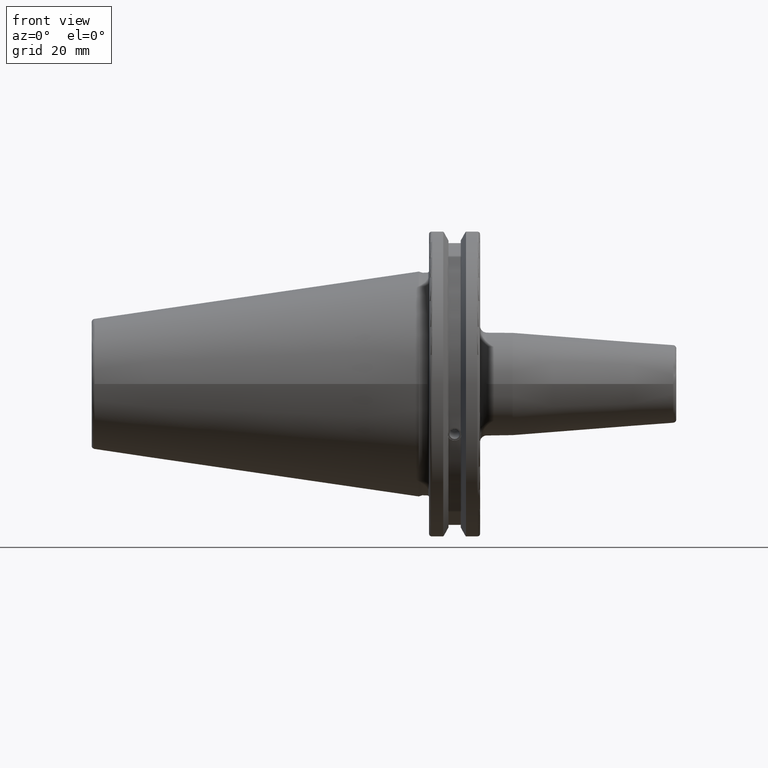
[diagram: clean part render]
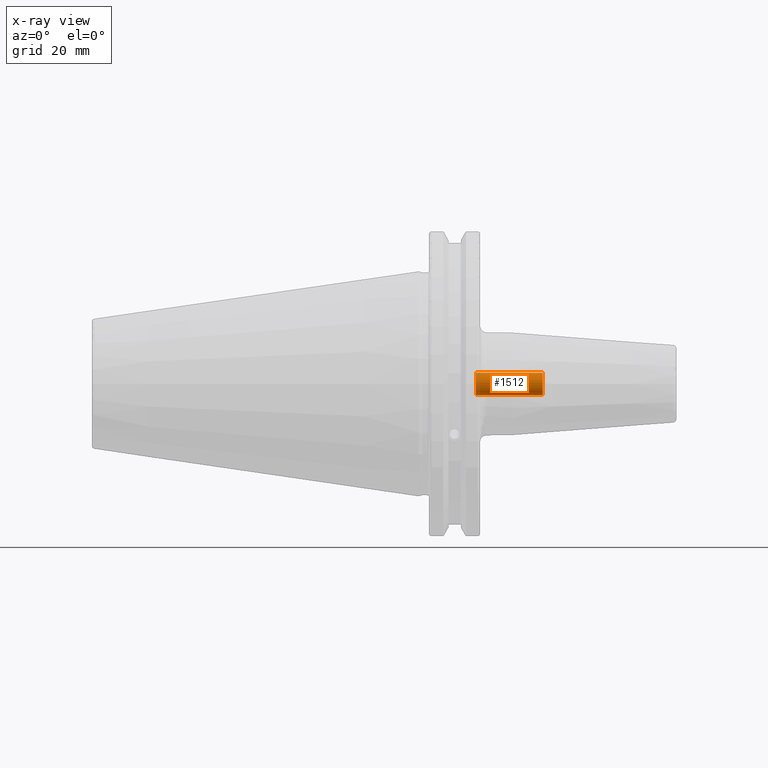
[diagram: x-ray — body ghosted, one internal face saturated and labeled with its STEP entity id]
A machine part, front view, then the same camera in x-ray: the body is ghosted and one INTERNAL B-rep face — a face not visible from any outside direction — is saturated and labeled: STEP entity #1512.
In plain terms, the highlighted cylindrical surface (bore or boss wall) has radius 3.4585 mm, axis along (1, 0, 0).
Its self-contained STEP definition (entity closure, byte-faithful):
#167=FACE_OUTER_BOUND('',#263,.T.);
#263=EDGE_LOOP('',(#1073,#1074,#1075,#1076,#1077));
#374=CIRCLE('',#1647,3.4585);
#375=CIRCLE('',#1649,3.4585);
#376=CIRCLE('',#1650,3.4585);
#448=LINE('',#2309,#542);
#542=VECTOR('',#1878,3.4585);
#653=VERTEX_POINT('',#2305);
#654=VERTEX_POINT('',#2308);
#655=VERTEX_POINT('',#2310);
#816=EDGE_CURVE('',#653,#653,#374,.T.);
#817=EDGE_CURVE('',#653,#654,#448,.T.);
#818=EDGE_CURVE('',#655,#654,#375,.T.);
#819=EDGE_CURVE('',#654,#655,#376,.T.);
#1073=ORIENTED_EDGE('',*,*,#816,.T.);
#1074=ORIENTED_EDGE('',*,*,#817,.T.);
#1075=ORIENTED_EDGE('',*,*,#818,.F.);
#1076=ORIENTED_EDGE('',*,*,#819,.F.);
#1077=ORIENTED_EDGE('',*,*,#817,.F.);
#1473=CYLINDRICAL_SURFACE('',#1648,3.4585);
#1512=ADVANCED_FACE('',(#167),#1473,.F.);
#1647=AXIS2_PLACEMENT_3D('',#2306,#1874,#1875);
#1648=AXIS2_PLACEMENT_3D('',#2307,#1876,#1877);
#1649=AXIS2_PLACEMENT_3D('',#2311,#1879,#1880);
#1650=AXIS2_PLACEMENT_3D('',#2312,#1881,#1882);
#1874=DIRECTION('center_axis',(1.,0.,0.));
#1875=DIRECTION('ref_axis',(0.,0.,-1.));
#1876=DIRECTION('center_axis',(1.,0.,0.));
#1877=DIRECTION('ref_axis',(0.,0.,-1.));
#1878=DIRECTION('',(-1.,0.,0.));
#1879=DIRECTION('center_axis',(1.,0.,0.));
#1880=DIRECTION('ref_axis',(0.,0.,-1.));
#1881=DIRECTION('center_axis',(1.,0.,0.));
#1882=DIRECTION('ref_axis',(0.,0.,-1.));
#2305=CARTESIAN_POINT('',(38.5,-4.23544095485112E-16,3.4585));
#2306=CARTESIAN_POINT('Origin',(38.5,0.,0.));
#2307=CARTESIAN_POINT('Origin',(-147.228560080512,0.,0.));
#2308=CARTESIAN_POINT('',(17.7811752036395,-4.23544095485112E-16,3.4585));
#2309=CARTESIAN_POINT('',(-147.228560080512,-4.23544095485112E-16,3.4585));
#2310=CARTESIAN_POINT('',(17.7811752036395,-4.23544095485112E-16,-3.4585));
#2311=CARTESIAN_POINT('Origin',(17.7811752036395,0.,0.));
#2312=CARTESIAN_POINT('Origin',(17.7811752036395,0.,0.));